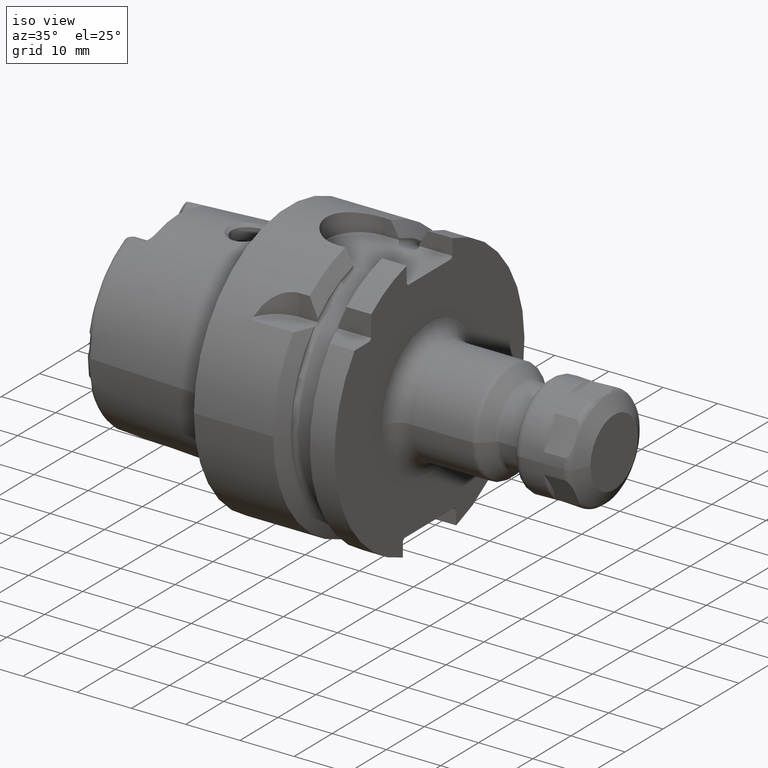
[diagram: clean part render]
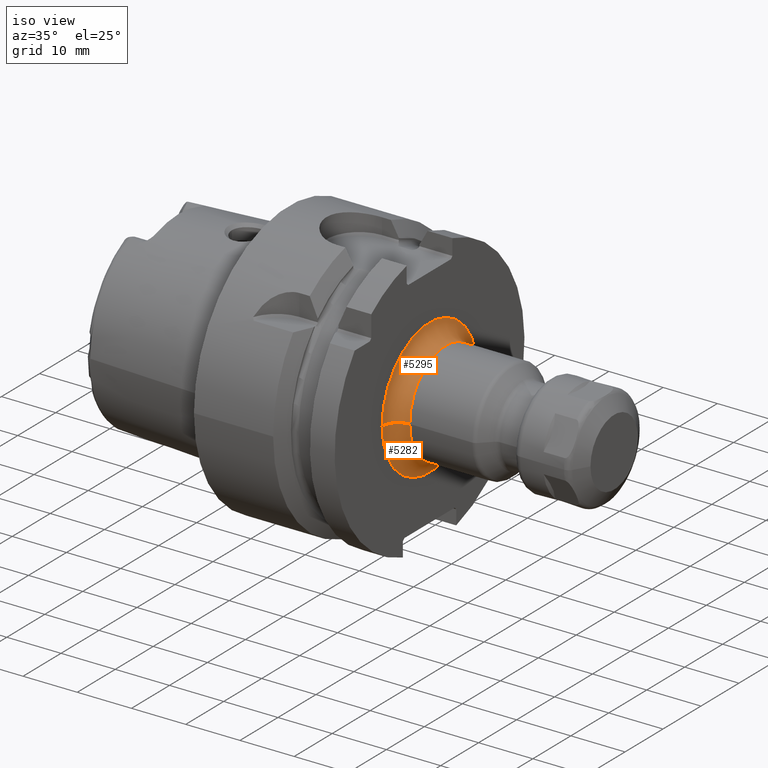
[diagram: same view with one multi-face feature highlighted, each face labeled with its STEP entity id]
A machine part, iso view. The highlighted faces form ONE feature: a constant-radius fillet chain: 2 tangent blend faces with common blend radius 3 mm. The faces share edges in the B-rep.
Their STEP definitions:
[1] entity #5295 (Torus):
#1726=CARTESIAN_POINT('',(2.595E1,0.E0,0.E0));
#1727=DIRECTION('',(1.E0,0.E0,0.E0));
#1728=DIRECTION('',(0.E0,1.E0,0.E0));
#1729=AXIS2_PLACEMENT_3D('',#1726,#1727,#1728);
#1892=CARTESIAN_POINT('',(2.895E1,-1.25E1,6.288997100867E-13));
#1893=DIRECTION('',(0.E0,-5.031218497376E-14,-1.E0));
#1894=DIRECTION('',(-1.E0,1.421085471520E-14,0.E0));
#1895=AXIS2_PLACEMENT_3D('',#1892,#1893,#1894);
#1897=CARTESIAN_POINT('',(2.895E1,1.25E1,-6.303846333822E-13));
#1898=DIRECTION('',(0.E0,5.043014617012E-14,1.E0));
#1899=DIRECTION('',(-1.E0,-1.361873576874E-14,0.E0));
#1900=AXIS2_PLACEMENT_3D('',#1897,#1898,#1899);
#1907=CARTESIAN_POINT('',(2.895E1,0.E0,0.E0));
#1908=DIRECTION('',(1.E0,0.E0,0.E0));
#1909=DIRECTION('',(0.E0,1.E0,0.E0));
#1910=AXIS2_PLACEMENT_3D('',#1907,#1908,#1909);
#3270=CARTESIAN_POINT('',(2.595E1,-1.25E1,0.E0));
#3271=CARTESIAN_POINT('',(2.595E1,1.25E1,0.E0));
#3272=VERTEX_POINT('',#3270);
#3273=VERTEX_POINT('',#3271);
#3274=CARTESIAN_POINT('',(2.895E1,-9.5E0,0.E0));
#3275=CARTESIAN_POINT('',(2.895E1,9.5E0,0.E0));
#3276=VERTEX_POINT('',#3274);
#3277=VERTEX_POINT('',#3275);
#5283=CARTESIAN_POINT('',(2.895E1,0.E0,0.E0));
#5284=DIRECTION('',(1.E0,0.E0,0.E0));
#5285=DIRECTION('',(0.E0,9.999672514283E-1,-8.092964286081E-3));
#5286=AXIS2_PLACEMENT_3D('',#5283,#5284,#5285);
#5287=TOROIDAL_SURFACE('',#5286,1.25E1,3.E0);
#5288=ORIENTED_EDGE('',*,*,#5102,.F.);
#5289=ORIENTED_EDGE('',*,*,#5278,.T.);
#5291=ORIENTED_EDGE('',*,*,#5290,.T.);
#5292=ORIENTED_EDGE('',*,*,#5274,.F.);
#5293=EDGE_LOOP('',(#5288,#5289,#5291,#5292));
#5294=FACE_OUTER_BOUND('',#5293,.F.);
#5295=ADVANCED_FACE('',(#5294),#5287,.F.);
#1730=CIRCLE('',#1729,1.25E1);
#1896=CIRCLE('',#1895,3.E0);
#1901=CIRCLE('',#1900,3.E0);
#1911=CIRCLE('',#1910,9.5E0);
#5102=EDGE_CURVE('',#3273,#3272,#1730,.T.);
#5274=EDGE_CURVE('',#3272,#3276,#1896,.T.);
#5278=EDGE_CURVE('',#3273,#3277,#1901,.T.);
#5290=EDGE_CURVE('',#3277,#3276,#1911,.T.);
[2] entity #5282 (Torus):
#1721=CARTESIAN_POINT('',(2.595E1,0.E0,0.E0));
#1722=DIRECTION('',(1.E0,0.E0,0.E0));
#1723=DIRECTION('',(0.E0,-1.E0,0.E0));
#1724=AXIS2_PLACEMENT_3D('',#1721,#1722,#1723);
#1892=CARTESIAN_POINT('',(2.895E1,-1.25E1,6.288997100867E-13));
#1893=DIRECTION('',(0.E0,-5.031218497376E-14,-1.E0));
#1894=DIRECTION('',(-1.E0,1.421085471520E-14,0.E0));
#1895=AXIS2_PLACEMENT_3D('',#1892,#1893,#1894);
#1897=CARTESIAN_POINT('',(2.895E1,1.25E1,-6.303846333822E-13));
#1898=DIRECTION('',(0.E0,5.043014617012E-14,1.E0));
#1899=DIRECTION('',(-1.E0,-1.361873576874E-14,0.E0));
#1900=AXIS2_PLACEMENT_3D('',#1897,#1898,#1899);
#1931=CARTESIAN_POINT('',(2.895E1,0.E0,0.E0));
#1932=DIRECTION('',(1.E0,0.E0,0.E0));
#1933=DIRECTION('',(0.E0,-1.E0,0.E0));
#1934=AXIS2_PLACEMENT_3D('',#1931,#1932,#1933);
#3270=CARTESIAN_POINT('',(2.595E1,-1.25E1,0.E0));
#3271=CARTESIAN_POINT('',(2.595E1,1.25E1,0.E0));
#3272=VERTEX_POINT('',#3270);
#3273=VERTEX_POINT('',#3271);
#3274=CARTESIAN_POINT('',(2.895E1,-9.5E0,0.E0));
#3275=CARTESIAN_POINT('',(2.895E1,9.5E0,0.E0));
#3276=VERTEX_POINT('',#3274);
#3277=VERTEX_POINT('',#3275);
#5268=CARTESIAN_POINT('',(2.895E1,0.E0,0.E0));
#5269=DIRECTION('',(1.E0,0.E0,0.E0));
#5270=DIRECTION('',(0.E0,-9.999672514283E-1,8.092964286082E-3));
#5271=AXIS2_PLACEMENT_3D('',#5268,#5269,#5270);
#5272=TOROIDAL_SURFACE('',#5271,1.25E1,3.E0);
#5273=ORIENTED_EDGE('',*,*,#5100,.F.);
#5275=ORIENTED_EDGE('',*,*,#5274,.T.);
#5277=ORIENTED_EDGE('',*,*,#5276,.T.);
#5279=ORIENTED_EDGE('',*,*,#5278,.F.);
#5280=EDGE_LOOP('',(#5273,#5275,#5277,#5279));
#5281=FACE_OUTER_BOUND('',#5280,.F.);
#5282=ADVANCED_FACE('',(#5281),#5272,.F.);
#1725=CIRCLE('',#1724,1.25E1);
#1896=CIRCLE('',#1895,3.E0);
#1901=CIRCLE('',#1900,3.E0);
#1935=CIRCLE('',#1934,9.5E0);
#5100=EDGE_CURVE('',#3272,#3273,#1725,.T.);
#5274=EDGE_CURVE('',#3272,#3276,#1896,.T.);
#5276=EDGE_CURVE('',#3276,#3277,#1935,.T.);
#5278=EDGE_CURVE('',#3273,#3277,#1901,.T.);